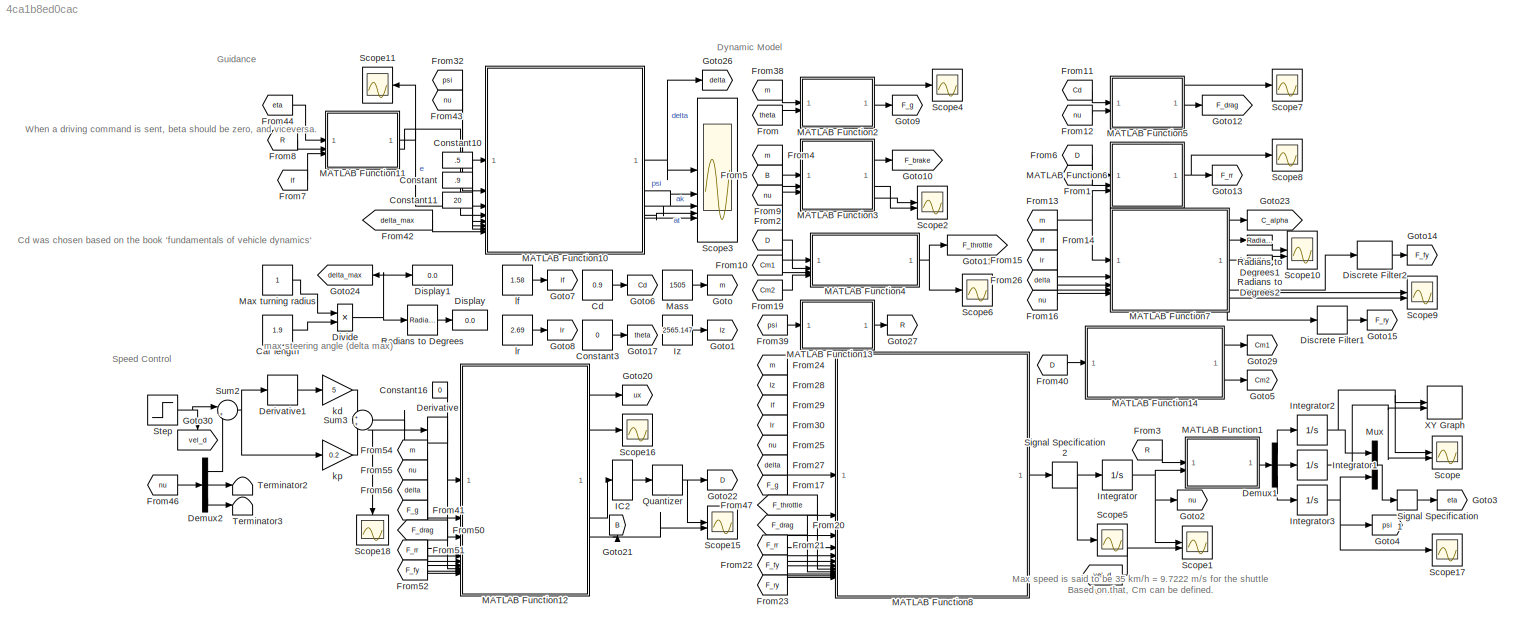
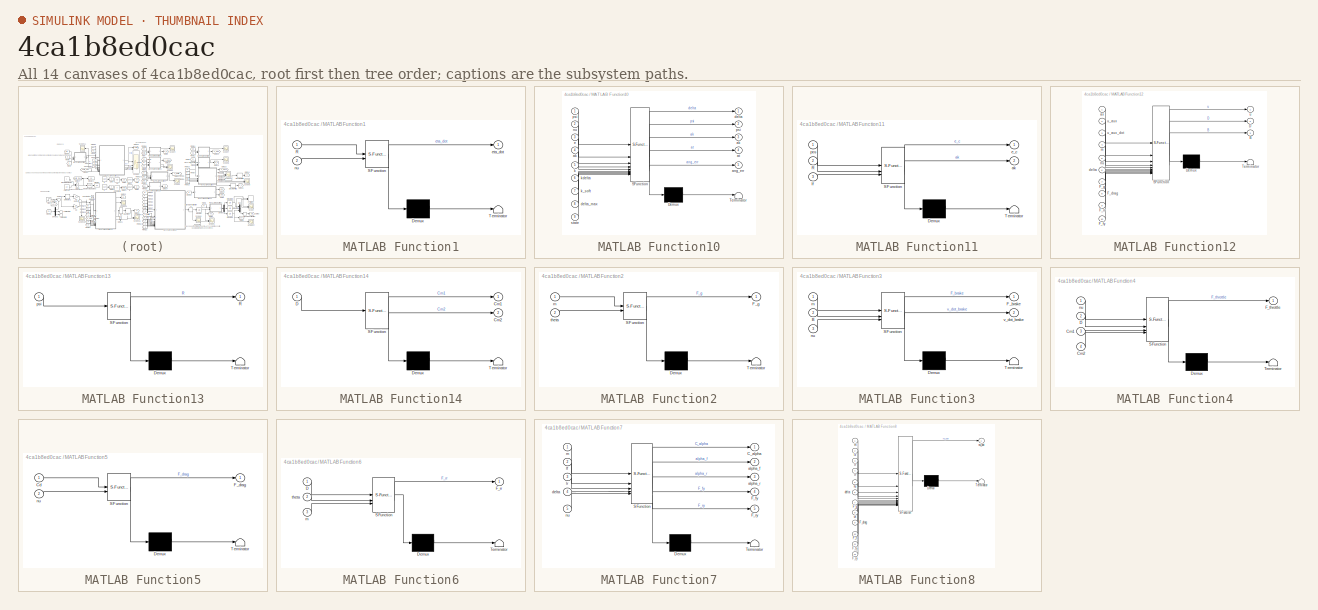
[diagram: thumbnail index - all 14 canvases of the model, root first then tree order]
MODEL slx_4ca1b8ed0cac
KIND model
CONFIG AbsTol = 1e-4
CONFIG EnableMultiTasking = off
CONFIG FixedStep = 0.5
CONFIG MaxStep = auto
CONFIG MinStep = auto
CONFIG RelTol = 1e-4
CONFIG SampleTimeConstraint = Unconstrained
CONFIG SolverName = ode1be
CONFIG StartTime = 0.0
CONFIG StopTime = 1000
BLOCK [Constant] Car length
  Value = 1.9
BLOCK [Constant] Cd
  Value = 0.9
BLOCK [Constant] Constant
  Value = .9
BLOCK [Constant] Constant10
  Value = .5
BLOCK [Constant] Constant11
  Value = 20
BLOCK [Constant] Constant16
  Value = 0
BLOCK [Constant] Constant3
  Value = 0
BLOCK [Demux] Demux1
  Outputs = 3
BLOCK [Demux] Demux2
  Outputs = 3
BLOCK [Derivative] Derivative
BLOCK [Derivative] Derivative1
BLOCK [DiscreteFilter] Discrete Filter1
  Denominator = [10]
  InputPortMap = u0
  Numerator = [0.001]
BLOCK [DiscreteFilter] Discrete Filter2
  Denominator = [10]
  InputPortMap = u0
  Numerator = [0.001]
BLOCK [Display] Display
  Decimation = 1
BLOCK [Display] Display1
  Decimation = 1
BLOCK [Product] Divide
  Inputs = */
BLOCK [From] From
  GotoTag = theta
BLOCK [From] From1
  GotoTag = theta
BLOCK [From] From10
  GotoTag = Cm1
BLOCK [From] From11
  GotoTag = Cd
BLOCK [From] From12
  GotoTag = nu
BLOCK [From] From13
  GotoTag = m
BLOCK [From] From14
  GotoTag = lf
BLOCK [From] From15
  GotoTag = lr
BLOCK [From] From16
  GotoTag = nu
BLOCK [From] From17
  GotoTag = F_g
BLOCK [From] From19
  GotoTag = Cm2
BLOCK [From] From2
  GotoTag = D
BLOCK [From] From20
  GotoTag = F_drag
BLOCK [From] From21
  GotoTag = F_rr
BLOCK [From] From22
  GotoTag = F_fy
BLOCK [From] From23
  GotoTag = F_ry
BLOCK [From] From24
  GotoTag = m
BLOCK [From] From25
  GotoTag = nu
BLOCK [From] From26
  GotoTag = delta
BLOCK [From] From27
  GotoTag = delta
BLOCK [From] From28
  GotoTag = Iz
BLOCK [From] From29
  GotoTag = lf
BLOCK [From] From3
  GotoTag = R
BLOCK [From] From30
  GotoTag = lr
BLOCK [From] From32
  GotoTag = psi
BLOCK [From] From38
  GotoTag = m
BLOCK [From] From39
  GotoTag = psi
BLOCK [From] From4
  GotoTag = m
BLOCK [From] From40
  GotoTag = D
BLOCK [From] From41
  GotoTag = F_g
BLOCK [From] From42
  GotoTag = delta_max
BLOCK [From] From43
  GotoTag = nu
BLOCK [From] From44
  GotoTag = eta
BLOCK [From] From46
  GotoTag = nu
BLOCK [From] From47
  GotoTag = F_throttle
BLOCK [From] From48
  GotoTag = vel_d
BLOCK [From] From5
  GotoTag = B
BLOCK [From] From50
  GotoTag = F_drag
BLOCK [From] From51
  GotoTag = F_rr
BLOCK [From] From52
  GotoTag = F_fy
BLOCK [From] From54
  GotoTag = m
BLOCK [From] From55
  GotoTag = nu
BLOCK [From] From56
  GotoTag = delta
BLOCK [From] From6
  GotoTag = D
BLOCK [From] From7
  GotoTag = lf
BLOCK [From] From8
  GotoTag = R
BLOCK [From] From9
  GotoTag = nu
BLOCK [Goto] Goto
  GotoTag = m
BLOCK [Goto] Goto1
  GotoTag = Iz
BLOCK [Goto] Goto10
  Commented = on
  GotoTag = F_brake
BLOCK [Goto] Goto11
  GotoTag = F_throttle
BLOCK [Goto] Goto12
  GotoTag = F_drag
BLOCK [Goto] Goto13
  GotoTag = F_rr
BLOCK [Goto] Goto14
  GotoTag = F_fy
BLOCK [Goto] Goto15
  GotoTag = F_ry
BLOCK [Goto] Goto17
  GotoTag = theta
BLOCK [Goto] Goto2
  GotoTag = nu
BLOCK [Goto] Goto20
  GotoTag = ux
BLOCK [Goto] Goto21
  GotoTag = B
  NameLocation = right
BLOCK [Goto] Goto22
  GotoTag = D
BLOCK [Goto] Goto23
  Commented = on
  GotoTag = C_alpha
BLOCK [Goto] Goto24
  GotoTag = delta_max
  NameLocation = top
BLOCK [Goto] Goto26
  GotoTag = delta
BLOCK [Goto] Goto27
  GotoTag = R
BLOCK [Goto] Goto29
  GotoTag = Cm1
BLOCK [Goto] Goto3
  GotoTag = eta
BLOCK [Goto] Goto30
  GotoTag = vel_d
  NameLocation = left
BLOCK [Goto] Goto4
  GotoTag = psi
BLOCK [Goto] Goto5
  GotoTag = Cm2
BLOCK [Goto] Goto6
  GotoTag = Cd
BLOCK [Goto] Goto7
  GotoTag = lf
BLOCK [Goto] Goto8
  GotoTag = lr
BLOCK [Goto] Goto9
  GotoTag = F_g
BLOCK [InitialCondition] IC2
  Value = 0
BLOCK [Integrator] Integrator
BLOCK [Integrator] Integrator1
BLOCK [Integrator] Integrator2
BLOCK [Integrator] Integrator3
  WrapState = on
BLOCK [Constant] Iz
  Value = 2565.147
BLOCK [SubSystem] MATLAB Function1
  ErrorFcn = Stateflow.Translate.translate
  PermitHierarchicalResolution = ExplicitOnly
  SFBlockType = MATLAB Function
  TreatAsAtomicUnit = on
BLOCK [Demux] MATLAB Function1/ Demux 
  Outputs = 1
BLOCK [S-Function] MATLAB Function1/ SFunction 
  EnableBusSupport = on
  FunctionName = sf_sfun
  PortCounts = [2 2]
  SFcnIsStateOwnerBlock = off
  SFunctionDeploymentMode = off
  Tag = Stateflow S-Function 1
BLOCK [Terminator] MATLAB Function1/ Terminator 
BLOCK [Inport] MATLAB Function1/R
BLOCK [Outport] MATLAB Function1/eta_dot
BLOCK [Inport] MATLAB Function1/nu
  Port = 2
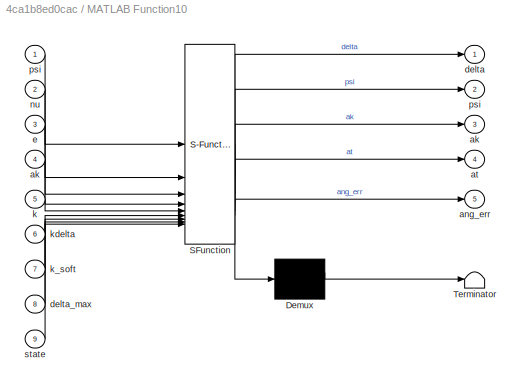
BLOCK [SubSystem] MATLAB Function10
  ErrorFcn = Stateflow.Translate.translate
  LibrarySourceBlock = simulink/User-Defined\nFunctions/MATLAB Function
  PermitHierarchicalResolution = ExplicitOnly
  SFBlockType = MATLAB Function
  TreatAsAtomicUnit = on
BLOCK [Demux] MATLAB Function10/ Demux 
  Outputs = 1
BLOCK [S-Function] MATLAB Function10/ SFunction 
  EnableBusSupport = on
  FunctionName = sf_sfun
  PortCounts = [9 6]
  SFcnIsStateOwnerBlock = off
  SFunctionDeploymentMode = off
  Tag = Stateflow S-Function 11
BLOCK [Terminator] MATLAB Function10/ Terminator 
BLOCK [Outport] MATLAB Function10/ak
  Port = 3
BLOCK [Inport] MATLAB Function10/ak 
  Port = 4
BLOCK [Outport] MATLAB Function10/ang_err
  Port = 5
BLOCK [Outport] MATLAB Function10/at
  Port = 4
BLOCK [Outport] MATLAB Function10/delta
BLOCK [Inport] MATLAB Function10/delta_max
  Port = 8
BLOCK [Inport] MATLAB Function10/e
  Port = 3
BLOCK [Inport] MATLAB Function10/k
  Port = 5
BLOCK [Inport] MATLAB Function10/k_soft
  Port = 7
BLOCK [Inport] MATLAB Function10/kdelta
  Port = 6
BLOCK [Inport] MATLAB Function10/nu
  Port = 2
BLOCK [Outport] MATLAB Function10/psi
  Port = 2
BLOCK [Inport] MATLAB Function10/psi 
BLOCK [Inport] MATLAB Function10/state
  Port = 9
BLOCK [SubSystem] MATLAB Function11
  ErrorFcn = Stateflow.Translate.translate
  LibrarySourceBlock = simulink/User-Defined\nFunctions/MATLAB Function
  PermitHierarchicalResolution = ExplicitOnly
  SFBlockType = MATLAB Function
  TreatAsAtomicUnit = on
BLOCK [Demux] MATLAB Function11/ Demux 
  Outputs = 1
BLOCK [S-Function] MATLAB Function11/ SFunction 
  EnableBusSupport = on
  FunctionName = sf_sfun
  PortCounts = [3 3]
  SFcnIsStateOwnerBlock = off
  SFunctionDeploymentMode = off
  Tag = Stateflow S-Function 12
BLOCK [Terminator] MATLAB Function11/ Terminator 
BLOCK [Inport] MATLAB Function11/R
  Port = 2
BLOCK [Outport] MATLAB Function11/ak
  Port = 2
BLOCK [Outport] MATLAB Function11/e_c
BLOCK [Inport] MATLAB Function11/lf
  Port = 3
BLOCK [Inport] MATLAB Function11/pos
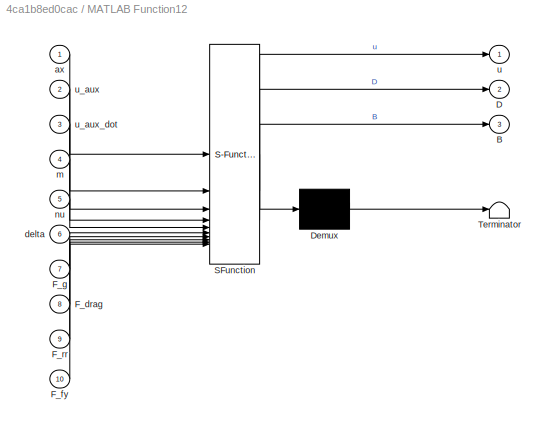
BLOCK [SubSystem] MATLAB Function12
  ErrorFcn = Stateflow.Translate.translate
  LibrarySourceBlock = simulink/User-Defined\nFunctions/MATLAB Function
  PermitHierarchicalResolution = ExplicitOnly
  SFBlockType = MATLAB Function
  TreatAsAtomicUnit = on
BLOCK [Demux] MATLAB Function12/ Demux 
  Outputs = 1
BLOCK [S-Function] MATLAB Function12/ SFunction 
  EnableBusSupport = on
  FunctionName = sf_sfun
  PortCounts = [10 4]
  SFcnIsStateOwnerBlock = off
  SFunctionDeploymentMode = off
  Tag = Stateflow S-Function 13
BLOCK [Terminator] MATLAB Function12/ Terminator 
BLOCK [Outport] MATLAB Function12/B
  Port = 3
BLOCK [Outport] MATLAB Function12/D
  Port = 2
BLOCK [Inport] MATLAB Function12/F_drag
  Port = 8
BLOCK [Inport] MATLAB Function12/F_fy
  Port = 10
BLOCK [Inport] MATLAB Function12/F_g
  Port = 7
BLOCK [Inport] MATLAB Function12/F_rr
  Port = 9
BLOCK [Inport] MATLAB Function12/ax
BLOCK [Inport] MATLAB Function12/delta
  Port = 6
BLOCK [Inport] MATLAB Function12/m
  Port = 4
BLOCK [Inport] MATLAB Function12/nu
  Port = 5
BLOCK [Outport] MATLAB Function12/u
BLOCK [Inport] MATLAB Function12/u_aux
  Port = 2
BLOCK [Inport] MATLAB Function12/u_aux_dot
  Port = 3
BLOCK [SubSystem] MATLAB Function13
  ErrorFcn = Stateflow.Translate.translate
  LibrarySourceBlock = simulink/User-Defined\nFunctions/MATLAB Function
  PermitHierarchicalResolution = ExplicitOnly
  SFBlockType = MATLAB Function
  TreatAsAtomicUnit = on
BLOCK [Demux] MATLAB Function13/ Demux 
  Outputs = 1
BLOCK [S-Function] MATLAB Function13/ SFunction 
  EnableBusSupport = on
  FunctionName = sf_sfun
  PortCounts = [1 2]
  SFcnIsStateOwnerBlock = off
  SFunctionDeploymentMode = off
  Tag = Stateflow S-Function 14
BLOCK [Terminator] MATLAB Function13/ Terminator 
BLOCK [Outport] MATLAB Function13/R
BLOCK [Inport] MATLAB Function13/psi
BLOCK [SubSystem] MATLAB Function14
  ErrorFcn = Stateflow.Translate.translate
  LibrarySourceBlock = simulink/User-Defined\nFunctions/MATLAB Function
  PermitHierarchicalResolution = ExplicitOnly
  SFBlockType = MATLAB Function
  TreatAsAtomicUnit = on
BLOCK [Demux] MATLAB Function14/ Demux 
  Outputs = 1
BLOCK [S-Function] MATLAB Function14/ SFunction 
  EnableBusSupport = on
  FunctionName = sf_sfun
  PortCounts = [1 3]
  SFcnIsStateOwnerBlock = off
  SFunctionDeploymentMode = off
  Tag = Stateflow S-Function 15
BLOCK [Terminator] MATLAB Function14/ Terminator 
BLOCK [Outport] MATLAB Function14/Cm1
BLOCK [Outport] MATLAB Function14/Cm2
  Port = 2
BLOCK [Inport] MATLAB Function14/D
BLOCK [SubSystem] MATLAB Function2
  ErrorFcn = Stateflow.Translate.translate
  LibrarySourceBlock = simulink/User-Defined\nFunctions/MATLAB Function
  PermitHierarchicalResolution = ExplicitOnly
  SFBlockType = MATLAB Function
  TreatAsAtomicUnit = on
BLOCK [Demux] MATLAB Function2/ Demux 
  Outputs = 1
BLOCK [S-Function] MATLAB Function2/ SFunction 
  EnableBusSupport = on
  FunctionName = sf_sfun
  PortCounts = [2 2]
  SFcnIsStateOwnerBlock = off
  SFunctionDeploymentMode = off
  Tag = Stateflow S-Function 3
BLOCK [Terminator] MATLAB Function2/ Terminator 
BLOCK [Outport] MATLAB Function2/F_g
BLOCK [Inport] MATLAB Function2/m
BLOCK [Inport] MATLAB Function2/theta
  Port = 2
BLOCK [SubSystem] MATLAB Function3
  ErrorFcn = Stateflow.Translate.translate
  LibrarySourceBlock = simulink/User-Defined\nFunctions/MATLAB Function
  PermitHierarchicalResolution = ExplicitOnly
  SFBlockType = MATLAB Function
  TreatAsAtomicUnit = on
BLOCK [Demux] MATLAB Function3/ Demux 
  Outputs = 1
BLOCK [S-Function] MATLAB Function3/ SFunction 
  EnableBusSupport = on
  FunctionName = sf_sfun
  PortCounts = [3 3]
  SFcnIsStateOwnerBlock = off
  SFunctionDeploymentMode = off
  Tag = Stateflow S-Function 4
BLOCK [Terminator] MATLAB Function3/ Terminator 
BLOCK [Inport] MATLAB Function3/B
  Port = 2
BLOCK [Outport] MATLAB Function3/F_brake
BLOCK [Inport] MATLAB Function3/m
BLOCK [Inport] MATLAB Function3/nu
  Port = 3
BLOCK [Outport] MATLAB Function3/v_dot_brake
  Port = 2
BLOCK [SubSystem] MATLAB Function4
  ErrorFcn = Stateflow.Translate.translate
  LibrarySourceBlock = simulink/User-Defined\nFunctions/MATLAB Function
  PermitHierarchicalResolution = ExplicitOnly
  SFBlockType = MATLAB Function
  TreatAsAtomicUnit = on
BLOCK [Demux] MATLAB Function4/ Demux 
  Outputs = 1
BLOCK [S-Function] MATLAB Function4/ SFunction 
  EnableBusSupport = on
  FunctionName = sf_sfun
  PortCounts = [4 2]
  SFcnIsStateOwnerBlock = off
  SFunctionDeploymentMode = off
  Tag = Stateflow S-Function 5
BLOCK [Terminator] MATLAB Function4/ Terminator 
BLOCK [Inport] MATLAB Function4/Cm1
  Port = 3
BLOCK [Inport] MATLAB Function4/Cm2
  Port = 4
BLOCK [Inport] MATLAB Function4/D
  Port = 2
BLOCK [Outport] MATLAB Function4/F_throttle
BLOCK [Inport] MATLAB Function4/nu
BLOCK [SubSystem] MATLAB Function5
  ErrorFcn = Stateflow.Translate.translate
  LibrarySourceBlock = simulink/User-Defined\nFunctions/MATLAB Function
  PermitHierarchicalResolution = ExplicitOnly
  SFBlockType = MATLAB Function
  TreatAsAtomicUnit = on
BLOCK [Demux] MATLAB Function5/ Demux 
  Outputs = 1
BLOCK [S-Function] MATLAB Function5/ SFunction 
  EnableBusSupport = on
  FunctionName = sf_sfun
  PortCounts = [2 2]
  SFcnIsStateOwnerBlock = off
  SFunctionDeploymentMode = off
  Tag = Stateflow S-Function 6
BLOCK [Terminator] MATLAB Function5/ Terminator 
BLOCK [Inport] MATLAB Function5/Cd
BLOCK [Outport] MATLAB Function5/F_drag
BLOCK [Inport] MATLAB Function5/nu
  Port = 2
BLOCK [SubSystem] MATLAB Function6
  ErrorFcn = Stateflow.Translate.translate
  LibrarySourceBlock = simulink/User-Defined\nFunctions/MATLAB Function
  PermitHierarchicalResolution = ExplicitOnly
  SFBlockType = MATLAB Function
  TreatAsAtomicUnit = on
BLOCK [Demux] MATLAB Function6/ Demux 
  Outputs = 1
BLOCK [S-Function] MATLAB Function6/ SFunction 
  EnableBusSupport = on
  FunctionName = sf_sfun
  PortCounts = [3 2]
  SFcnIsStateOwnerBlock = off
  SFunctionDeploymentMode = off
  Tag = Stateflow S-Function 7
BLOCK [Terminator] MATLAB Function6/ Terminator 
BLOCK [Inport] MATLAB Function6/D
BLOCK [Outport] MATLAB Function6/F_rr
BLOCK [Inport] MATLAB Function6/m
  Port = 3
BLOCK [Inport] MATLAB Function6/theta
  Port = 2
BLOCK [SubSystem] MATLAB Function7
  ErrorFcn = Stateflow.Translate.translate
  LibrarySourceBlock = simulink/User-Defined\nFunctions/MATLAB Function
  PermitHierarchicalResolution = ExplicitOnly
  SFBlockType = MATLAB Function
  TreatAsAtomicUnit = on
BLOCK [Demux] MATLAB Function7/ Demux 
  Outputs = 1
BLOCK [S-Function] MATLAB Function7/ SFunction 
  EnableBusSupport = on
  FunctionName = sf_sfun
  PortCounts = [5 6]
  SFcnIsStateOwnerBlock = off
  SFunctionDeploymentMode = off
  Tag = Stateflow S-Function 8
BLOCK [Terminator] MATLAB Function7/ Terminator 
BLOCK [Outport] MATLAB Function7/C_alpha
BLOCK [Outport] MATLAB Function7/F_fy
  Port = 4
BLOCK [Outport] MATLAB Function7/F_ry
  Port = 5
BLOCK [Outport] MATLAB Function7/alpha_f
  Port = 2
BLOCK [Outport] MATLAB Function7/alpha_r
  Port = 3
BLOCK [Inport] MATLAB Function7/delta
  Port = 4
BLOCK [Inport] MATLAB Function7/lf
  Port = 2
BLOCK [Inport] MATLAB Function7/lr
  Port = 3
BLOCK [Inport] MATLAB Function7/m
BLOCK [Inport] MATLAB Function7/nu
  Port = 5
BLOCK [SubSystem] MATLAB Function8
  ErrorFcn = Stateflow.Translate.translate
  LibrarySourceBlock = simulink/User-Defined\nFunctions/MATLAB Function
  PermitHierarchicalResolution = ExplicitOnly
  SFBlockType = MATLAB Function
  TreatAsAtomicUnit = on
BLOCK [Demux] MATLAB Function8/ Demux 
  Outputs = 1
BLOCK [S-Function] MATLAB Function8/ SFunction 
  EnableBusSupport = on
  FunctionName = sf_sfun
  PortCounts = [12 2]
  SFcnIsStateOwnerBlock = off
  SFunctionDeploymentMode = off
  Tag = Stateflow S-Function 9
BLOCK [Terminator] MATLAB Function8/ Terminator 
BLOCK [Inport] MATLAB Function8/F_drag
  Port = 9
BLOCK [Inport] MATLAB Function8/F_fy
  Port = 11
BLOCK [Inport] MATLAB Function8/F_g
  Port = 7
BLOCK [Inport] MATLAB Function8/F_rr
  Port = 10
BLOCK [Inport] MATLAB Function8/F_ry
  Port = 12
BLOCK [Inport] MATLAB Function8/Iz
  Port = 2
BLOCK [Inport] MATLAB Function8/delta
  Port = 6
BLOCK [Inport] MATLAB Function8/lf
  Port = 3
BLOCK [Inport] MATLAB Function8/lr
  Port = 4
BLOCK [Inport] MATLAB Function8/m
BLOCK [Inport] MATLAB Function8/nu
  Port = 5
BLOCK [Outport] MATLAB Function8/nu_dot
BLOCK [Inport] MATLAB Function8/ux
  Port = 8
BLOCK [Constant] Mass
  Value = 1505
BLOCK [Constant] Max turning radius
BLOCK [Mux] Mux
  DisplayOption = bar
  Inputs = 3
BLOCK [Quantizer] Quantizer
  QuantizationInterval = 1
BLOCK [Reference] Radians to Degrees  REF=simulink_extras/Transformations/Radians
to Degrees
  SourceBlock = simulink_extras/Transformations/Radians\nto Degrees
  SourceType = RadiansToDegrees
BLOCK [Reference] Radians to Degrees1  REF=simulink_extras/Transformations/Radians
to Degrees
  SourceBlock = simulink_extras/Transformations/Radians\nto Degrees
  SourceType = RadiansToDegrees
BLOCK [Reference] Radians to Degrees2  REF=simulink_extras/Transformations/Radians
to Degrees
  SourceBlock = simulink_extras/Transformations/Radians\nto Degrees
  SourceType = RadiansToDegrees
BLOCK [Scope] Scope
  Floating = off
  NumInputPorts = 2
  ScopeSpecificationString = Simulink.scopes.TimeScopeBlockCfg('CurrentConfiguration', extmgr.ConfigurationSet(extmgr.Configuration('Core','General UI',true),extmgr.Configuration('Core','Source UI',true),extmgr.Configuration('Sources','WiredSimulink',true,'DataLoggingVariableName','ScopeData4'),extmgr.Configuration('Visuals','Time Domain',true,'SerializedDisplays',{struct('MinYLimReal','-54.84844','MaxYLimReal','493.62717','Y...<+1505ch>
BLOCK [Scope] Scope1
  Floating = off
  NumInputPorts = 2
  ScopeSpecificationString = Simulink.scopes.TimeScopeBlockCfg('CurrentConfiguration', extmgr.ConfigurationSet(extmgr.Configuration('Core','General UI',true),extmgr.Configuration('Core','Source UI',true),extmgr.Configuration('Sources','WiredSimulink',true,'DataLoggingVariableName','ScopeData2'),extmgr.Configuration('Visuals','Time Domain',true,'SerializedDisplays',{struct('MinYLimReal','-0.3864','MaxYLimReal','1.15966','YLabe...<+1561ch>
BLOCK [Scope] Scope10
  Floating = off
  NumInputPorts = 2
  ScopeSpecificationString = Simulink.scopes.TimeScopeBlockCfg('CurrentConfiguration', extmgr.ConfigurationSet(extmgr.Configuration('Core','General UI',true),extmgr.Configuration('Core','Source UI',true),extmgr.Configuration('Sources','WiredSimulink',true,'DataLoggingVariableName','ScopeData1'),extmgr.Configuration('Visuals','Time Domain',true,'SerializedDisplays',{struct('MinYLimReal','-216.76529','MaxYLimReal','192.20094','...<+1531ch>
BLOCK [Scope] Scope11
  Floating = off
  NameLocation = top
  NumInputPorts = 1
  ScopeSpecificationString = Simulink.scopes.TimeScopeBlockCfg('CurrentConfiguration', extmgr.ConfigurationSet(extmgr.Configuration('Core','General UI',true),extmgr.Configuration('Core','Source UI',true),extmgr.Configuration('Sources','WiredSimulink',true,'DataLoggingVariableName','ScopeData1'),extmgr.Configuration('Visuals','Time Domain',true,'SerializedDisplays',{struct('MinYLimReal','-0.32656','MaxYLimReal','0.10905','YLab...<+1506ch>
BLOCK [Scope] Scope15
  Floating = off
  NumInputPorts = 2
  ScopeSpecificationString = Simulink.scopes.TimeScopeBlockCfg('CurrentConfiguration', extmgr.ConfigurationSet(extmgr.Configuration('Core','General UI',true),extmgr.Configuration('Core','Source UI',true),extmgr.Configuration('Sources','WiredSimulink',true,'DataLoggingVariableName','ScopeData2'),extmgr.Configuration('Visuals','Time Domain',true,'SerializedDisplays',{struct('MinYLimReal','-18.33333','MaxYLimReal','50.41667','YL...<+1464ch>
BLOCK [Scope] Scope16
  Floating = off
  NumInputPorts = 1
  ScopeSpecificationString = Simulink.scopes.TimeScopeBlockCfg('CurrentConfiguration', extmgr.ConfigurationSet(extmgr.Configuration('Core','General UI',true),extmgr.Configuration('Core','Source UI',true),extmgr.Configuration('Sources','WiredSimulink',true,'DataLoggingVariableName','ScopeData3'),extmgr.Configuration('Visuals','Time Domain',true,'SerializedDisplays',{struct('MinYLimReal','1089.25278','MaxYLimReal','1653.62778',...<+1759ch>
BLOCK [Scope] Scope17
  Floating = off
  NumInputPorts = 1
  ScopeSpecificationString = Simulink.scopes.TimeScopeBlockCfg('CurrentConfiguration', extmgr.ConfigurationSet(extmgr.Configuration('Core','General UI',true),extmgr.Configuration('Core','Source UI',true),extmgr.Configuration('Sources','WiredSimulink',true,'DataLoggingVariableName','ScopeData5'),extmgr.Configuration('Visuals','Time Domain',true,'SerializedDisplays',{struct('MinYLimReal','-1.77224','MaxYLimReal','0.19692','YLab...<+1390ch>
BLOCK [Scope] Scope18
  Floating = off
  NameLocation = left
  NumInputPorts = 1
  ScopeSpecificationString = Simulink.scopes.TimeScopeBlockCfg('CurrentConfiguration', extmgr.ConfigurationSet(extmgr.Configuration('Core','General UI',true),extmgr.Configuration('Core','Source UI',true),extmgr.Configuration('Sources','WiredSimulink',true,'DataLoggingVariableName','ScopeData1'),extmgr.Configuration('Visuals','Time Domain',true,'SerializedDisplays',{struct('MinYLimReal','-0.03808','MaxYLimReal','0.22645','YLab...<+1728ch>
BLOCK [Scope] Scope2
  Floating = off
  NumInputPorts = 2
  ScopeSpecificationString = Simulink.scopes.TimeScopeBlockCfg('CurrentConfiguration', extmgr.ConfigurationSet(extmgr.Configuration('Core','General UI',true),extmgr.Configuration('Core','Source UI',true),extmgr.Configuration('Sources','WiredSimulink',true,'DataLoggingVariableName','ScopeData7'),extmgr.Configuration('Visuals','Time Domain',true,'SerializedDisplays',{struct('MinYLimReal','-1.00000','MaxYLimReal','1.00000','YLab...<+1521ch>
BLOCK [Scope] Scope3
  Floating = off
  NumInputPorts = 5
  ScopeSpecificationString = Simulink.scopes.TimeScopeBlockCfg('CurrentConfiguration', extmgr.ConfigurationSet(extmgr.Configuration('Core','General UI',true),extmgr.Configuration('Core','Source UI',true),extmgr.Configuration('Sources','WiredSimulink',true,'DataLoggingVariableName','ScopeData1'),extmgr.Configuration('Visuals','Time Domain',true,'SerializedDisplays',{struct('MinYLimReal','-1.65502','MaxYLimReal','0.18389','YLab...<+1575ch>
BLOCK [Scope] Scope4
  Floating = off
  NumInputPorts = 1
  ScopeSpecificationString = Simulink.scopes.TimeScopeBlockCfg('CurrentConfiguration', extmgr.ConfigurationSet(extmgr.Configuration('Core','General UI',true),extmgr.Configuration('Core','Source UI',true),extmgr.Configuration('Sources','WiredSimulink',true,'DataLoggingVariableName','ScopeData2'),extmgr.Configuration('Visuals','Time Domain',true,'SerializedDisplays',{struct('MinYLimReal','-1.00000','MaxYLimReal','1.00000','YLab...<+1409ch>
BLOCK [Scope] Scope5
  Floating = off
  NumInputPorts = 1
  ScopeSpecificationString = Simulink.scopes.TimeScopeBlockCfg('CurrentConfiguration', extmgr.ConfigurationSet(extmgr.Configuration('Core','General UI',true),extmgr.Configuration('Core','Source UI',true),extmgr.Configuration('Sources','WiredSimulink',true,'DataLoggingVariableName','ScopeData1'),extmgr.Configuration('Visuals','Time Domain',true,'SerializedDisplays',{struct('MinYLimReal','-6.07548','MaxYLimReal','46.40261','YLa...<+1554ch>
BLOCK [Scope] Scope6
  Floating = off
  NumInputPorts = 1
  ScopeSpecificationString = Simulink.scopes.TimeScopeBlockCfg('CurrentConfiguration', extmgr.ConfigurationSet(extmgr.Configuration('Core','General UI',true),extmgr.Configuration('Core','Source UI',true),extmgr.Configuration('Sources','WiredSimulink',true,'DataLoggingVariableName','ScopeData3'),extmgr.Configuration('Visuals','Time Domain',true,'SerializedDisplays',{struct('MinYLimReal','-990.12564','MaxYLimReal','2353.7711','...<+1437ch>
BLOCK [Scope] Scope7
  Floating = off
  NumInputPorts = 1
  ScopeSpecificationString = Simulink.scopes.TimeScopeBlockCfg('CurrentConfiguration', extmgr.ConfigurationSet(extmgr.Configuration('Core','General UI',true),extmgr.Configuration('Core','Source UI',true),extmgr.Configuration('Sources','WiredSimulink',true,'DataLoggingVariableName','ScopeData4'),extmgr.Configuration('Visuals','Time Domain',true,'SerializedDisplays',{struct('MinYLimReal','-1.00000','MaxYLimReal','1.00000','YLab...<+1415ch>
BLOCK [Scope] Scope8
  Floating = off
  NumInputPorts = 1
  ScopeSpecificationString = Simulink.scopes.TimeScopeBlockCfg('CurrentConfiguration', extmgr.ConfigurationSet(extmgr.Configuration('Core','General UI',true),extmgr.Configuration('Core','Source UI',true),extmgr.Configuration('Sources','WiredSimulink',true,'DataLoggingVariableName','ScopeData5'),extmgr.Configuration('Visuals','Time Domain',true,'SerializedDisplays',{struct('MinYLimReal','145.69028','MaxYLimReal','2145.69028','...<+1462ch>
BLOCK [Scope] Scope9
  Floating = off
  NumInputPorts = 2
  ScopeSpecificationString = Simulink.scopes.TimeScopeBlockCfg('CurrentConfiguration', extmgr.ConfigurationSet(extmgr.Configuration('Core','General UI',true),extmgr.Configuration('Core','Source UI',true),extmgr.Configuration('Sources','WiredSimulink',true,'DataLoggingVariableName','ScopeData6'),extmgr.Configuration('Visuals','Time Domain',true,'SerializedDisplays',{struct('MinYLimReal','-1.00000','MaxYLimReal','1.00000','YLab...<+1505ch>
BLOCK [SignalSpecification] Signal Specification1
BLOCK [SignalSpecification] Signal Specification2
  Dimensions = 3
BLOCK [Step] Step
  After = .5
  Before = .5
  SampleTime = 0
  Time = 0
BLOCK [Sum] Sum2
  Inputs = |+-
BLOCK [Sum] Sum3
BLOCK [Terminator] Terminator2
BLOCK [Terminator] Terminator3
BLOCK [Record] XY Graph
  CompatibilityTag = XY
  FileSettingsInternal = {"entries":[{"content":{"excelSettings":{"content":{},"type":"Streamout.ExcelSettings"}},"type":"Streamout.FileSettingStorage","uuid":""}],"packageUris":["http:\/\/schema.mathworks.com\/mf0\/streamout_blocks\/R2020a"],"version":"1.0"}
  Layout = [1 1]
  SignalsInternal = {"entries":[{"content":{"signals":[{"content":{"blockPath":[],"dimensions":[1],"domain":"","lineColor":"#edb120","plots":[1],"port":1,"signalID":16,"signalName":"Integrator2"},"type":"RecordBlkView.Signal","uuid":""},{"content":{"blockPath":[],"dimensions":[1],"domain":"","lineColor":"#7e2f8e","plots":[1],"port":2,"signalID":19,"signalName":"Integrator1"},"type":"RecordBlkView.Signal","uuid":""}]}...<+144ch>
  VisualizationBindings = {"xyplotplugin":{"info":[{"series":[{"bindingParametersList":[{"parameter":"X-Axis","signalID":16,"signalName":"Integrator2"},{"parameter":"Y-Axis","signalID":19,"signalName":"Integrator1"}],"seriesID":32640}],"subplotID":1}]}}
BLOCK [Gain] kd
  Gain = 5
BLOCK [Gain] kp
  Gain = 0.2
BLOCK [Constant] lf
  Value = 1.58
BLOCK [Constant] lr
  Value = 2.69
ANNOTATION (root): Cd was chosen based on the book 'fundamentals of vehicle dynamics'
ANNOTATION (root): Dynamic Model
ANNOTATION (root): Guidance
ANNOTATION (root): Max speed is said to be 35 km/h = 9.7222 m/s for the shuttle Based on that, Cm can be defined.
ANNOTATION (root): Speed Control
ANNOTATION (root): When a driving command is sent, beta should be zero, and viceversa.
ANNOTATION (root): max steering angle (delta max)
LINE Car length:1 -> Divide:2
LINE Cd:1 -> Goto6:1
LINE Constant10:1 -> MATLAB Function10:5
LINE Constant11:1 -> MATLAB Function10:7
LINE Constant16:1 -> MATLAB Function12:1
LINE Constant3:1 -> Goto17:1
LINE Constant:1 -> MATLAB Function10:6
LINE Demux1:1 -> Integrator2:1
LINE Demux1:2 -> Integrator1:1
LINE Demux1:3 -> Integrator3:1
LINE Demux2:1 -> Sum2:2
LINE Demux2:2 -> Terminator2:1
LINE Demux2:3 -> Terminator3:1
LINE Derivative1:1 -> kd:1
LINE Derivative:1 -> MATLAB Function12:3
LINE Discrete Filter1:1 -> Goto15:1
LINE Discrete Filter2:1 -> Goto14:1
NET Divide:1 -> Display1:1, Goto24:1, Radians to Degrees:1
LINE From10:1 -> MATLAB Function4:3
LINE From11:1 -> MATLAB Function5:1
LINE From12:1 -> MATLAB Function5:2
NET From13:1 -> MATLAB Function6:3, MATLAB Function7:1
LINE From14:1 -> MATLAB Function7:2
LINE From15:1 -> MATLAB Function7:3
LINE From16:1 -> MATLAB Function7:5
LINE From17:1 -> MATLAB Function8:7
LINE From19:1 -> MATLAB Function4:4
LINE From1:1 -> MATLAB Function6:2
LINE From20:1 -> MATLAB Function8:9
LINE From21:1 -> MATLAB Function8:10
LINE From22:1 -> MATLAB Function8:11
LINE From23:1 -> MATLAB Function8:12
LINE From24:1 -> MATLAB Function8:1
LINE From25:1 -> MATLAB Function8:5
LINE From26:1 -> MATLAB Function7:4
LINE From27:1 -> MATLAB Function8:6
LINE From28:1 -> MATLAB Function8:2
LINE From29:1 -> MATLAB Function8:3
LINE From2:1 -> MATLAB Function4:2
LINE From30:1 -> MATLAB Function8:4
LINE From32:1 -> MATLAB Function10:1
LINE From38:1 -> MATLAB Function2:1
LINE From39:1 -> MATLAB Function13:1
LINE From3:1 -> MATLAB Function1:1
LINE From40:1 -> MATLAB Function14:1
LINE From41:1 -> MATLAB Function12:7
LINE From42:1 -> MATLAB Function10:8
LINE From43:1 -> MATLAB Function10:2
LINE From44:1 -> MATLAB Function11:1
LINE From46:1 -> Demux2:1
LINE From47:1 -> MATLAB Function8:8
LINE From48:1 -> Scope1:2
LINE From4:1 -> MATLAB Function3:1
LINE From50:1 -> MATLAB Function12:8
LINE From51:1 -> MATLAB Function12:9
LINE From52:1 -> MATLAB Function12:10
LINE From54:1 -> MATLAB Function12:4
LINE From55:1 -> MATLAB Function12:5
LINE From56:1 -> MATLAB Function12:6
LINE From5:1 -> MATLAB Function3:2
LINE From6:1 -> MATLAB Function6:1
LINE From7:1 -> MATLAB Function11:3
LINE From8:1 -> MATLAB Function11:2
NET From9:1 -> MATLAB Function3:3, MATLAB Function4:1
LINE From:1 -> MATLAB Function2:2
LINE IC2:1 -> Quantizer:1
NET Integrator1:1 -> Mux:2, Scope:2, XY Graph:2
NET Integrator2:1 -> Mux:1, Scope:1, XY Graph:1
NET Integrator3:1 -> Goto4:1, Mux:3, Scope17:1
NET Integrator:1 -> Goto2:1, MATLAB Function1:2, Scope1:1
LINE Iz:1 -> Goto1:1
NET MATLAB Function10:1 -> Goto26:1, Scope3:1
LINE MATLAB Function10:2 -> Scope3:2
LINE MATLAB Function10:3 -> Scope3:3
LINE MATLAB Function10:4 -> Scope3:4
LINE MATLAB Function10:5 -> Scope3:5
NET MATLAB Function11:1 -> MATLAB Function10:3, Scope11:1
LINE MATLAB Function11:2 -> MATLAB Function10:4
NET MATLAB Function12:1 -> Goto20:1, Scope16:1
LINE MATLAB Function12:2 -> IC2:1
NET MATLAB Function12:3 -> Goto21:1, Scope15:2
LINE MATLAB Function13:1 -> Goto27:1
LINE MATLAB Function14:1 -> Goto29:1
LINE MATLAB Function14:2 -> Goto5:1
LINE MATLAB Function1:1 -> Demux1:1
NET MATLAB Function2:1 -> Goto9:1, Scope4:1
NET MATLAB Function3:1 -> Goto10:1, Scope2:1
LINE MATLAB Function3:2 -> Scope2:2
NET MATLAB Function4:1 -> Goto11:1, Scope6:1
NET MATLAB Function5:1 -> Goto12:1, Scope7:1
NET MATLAB Function6:1 -> Goto13:1, Scope8:1
LINE MATLAB Function7:1 -> Goto23:1
LINE MATLAB Function7:2 -> Radians to Degrees1:1
LINE MATLAB Function7:3 -> Radians to Degrees2:1
NET MATLAB Function7:4 -> Discrete Filter2:1, Scope9:1
NET MATLAB Function7:5 -> Discrete Filter1:1, Scope9:2
LINE MATLAB Function8:1 -> Signal Specification2:1
LINE Mass:1 -> Goto:1
LINE Max turning radius:1 -> Divide:1
LINE Mux:1 -> Signal Specification1:1
NET Quantizer:1 -> Goto22:1, Scope15:1
LINE Radians to Degrees1:1 -> Scope10:1
LINE Radians to Degrees2:1 -> Scope10:2
LINE Radians to Degrees:1 -> Display:1
LINE Signal Specification1:1 -> Goto3:1
NET Signal Specification2:1 -> Integrator:1, Scope5:1
NET Step:1 -> Goto30:1, Sum2:1
NET Sum2:1 -> Derivative1:1, kp:1
NET Sum3:1 -> Derivative:1, MATLAB Function12:2, Scope18:1
LINE kd:1 -> Sum3:1
LINE kp:1 -> Sum3:2
LINE lf:1 -> Goto7:1
LINE lr:1 -> Goto8:1
note: NET lines group one-source signal fan-out (src -> all destinations, sorted); 1:1 wires keep LINE
CHART MATLAB Function8 states=1 transitions=1
  STATE_LABEL 'eML_blk_kernel()'
  STATE_LABEL 'SCRIPT:\nfunction nu_dot = model_functions(m,Iz,lf,lr,nu,delta,F_g,ux, F_drag,F_rr,F_fy,F_ry)\n    vx = nu(1);\n    vy = nu(2);\n    r = nu(3);\n    \n    fx =  -(F_drag + F_rr + F_g + F_fy*sin(delta) - m*vy*r)/m;\n    fy = (F_ry + F_fy*cos(delta) - m*vx*r)/m;\n    fz = (F_fy*lf*cos(delta) - F_ry*lr)/Iz;\n\n    %ux = F_brake + F_throttle;\n    uy = 0;\n    uz = 0;\n\n    gx = 1/m;\n    gy = 0;\n    gz = 0;\n\n    f...<+95ch>'
CHART MATLAB Function10 states=1 transitions=1
  STATE_LABEL 'eML_blk_kernel()'
  STATE_LABEL 'SCRIPT:\nfunction [delta, psi, ak, at, ang_err]= Stanley_Controller_pro(psi, nu,e,ak, k,kdelta, k_soft,delta_max, state)\n    v = norm(nu(1:2));\n    %v = nu(1);\n\n    ang_err = ak-psi;\n    at = atan2(k*e,k_soft + v);\n    delta = kdelta*(ang_err+at);\n\n    if(delta > delta_max)\n        delta = delta_max;\n    elseif(delta < -delta_max)\n        delta = -delta_max;\n    end\nend\n\n'
CHART MATLAB Function11 states=1 transitions=1
  STATE_LABEL 'eML_blk_kernel()'
  STATE_LABEL 'SCRIPT:\nfunction [e_c,ak] = path(pos, R, lf)\n    path = [0  0;\n            10 1];\n\n    x0 = path(1,1);\n    x1 = path(2,1);\n\n    y0 = path(1,2);\n    y1 = path(2,2);\n\n    e_x = x1 - x0;\n    e_y = y1 - y0;\n\n    ak = -atan2(e_x,e_y);\n\n    pf = R*[lf; 0] + [pos(1); pos(2)];\n\n    x = pf(1);\n    y = pf(2);\n\n    x_p = 0;\n    y_p = 0;\n    \n    if (e_x ~= 0 && e_y ~= 0)\n        % Slope of path\n        m1 = ...<+622ch>'
CHART MATLAB Function12 states=1 transitions=1
  STATE_LABEL 'eML_blk_kernel()'
  STATE_LABEL 'SCRIPT:\nfunction [u,D,B]= model_functions(ax,u_aux,u_aux_dot,m,nu,delta,F_g,F_drag,F_rr,F_fy)\n    vx = nu(1);\n    vy = nu(2);\n    r = nu(3);\n\n    B = 0;\n    fx =  -(F_drag + F_rr + F_g + F_fy*sin(delta) - m*vy*r)/m;\n    %gx = 1/m;\n    u = m*(-fx + ax + u_aux);\n\n    % Next condition was set so the vehicle does not move backwards when\n    % the throttle force is less than the resistance\n    if(F_rr ...<+512ch>'
CHART MATLAB Function13 states=1 transitions=1
  STATE_LABEL 'eML_blk_kernel()'
  STATE_LABEL 'SCRIPT:\nfunction R = Rotation(psi)\n    R = [cos(psi) sin(psi);\n        -sin(psi) cos(psi)];\nend'
CHART MATLAB Function14 states=1 transitions=1
  STATE_LABEL 'eML_blk_kernel()'
  STATE_LABEL 'SCRIPT:\nfunction [Cm1,Cm2]= Motor_Constants(D)\n\n    Cm1 = 0.0113*D^2-2.1552*D+142.22;\n    Cm2 = 0.0028*D^2-0.4629*D+22.399;\n\n    %Cm1 = 120.78*exp(-0.013*D);\n    %Cm2 = 16.762*exp(-0.019*D);\n\n    %Cm1 = -0.7333*D + 102.59;\n    %Cm2 = -0.1125*D + 12.631;\n\n    %Cm1 = -43.63*log(D)+234.3;\n    %Cm2 = -6.903*log(D)+33.706;\n'
CHART MATLAB Function1 states=1 transitions=1
  STATE_LABEL 'eML_blk_kernel()'
  STATE_LABEL 'SCRIPT:\nfunction eta_dot = kinematics(R, nu)\n    eta_dot = [0;0;nu(3)];\n    eta_dot(1:2) = R*nu(1:2);\nend'
CHART MATLAB Function2 states=1 transitions=1
  STATE_LABEL 'eML_blk_kernel()'
  STATE_LABEL 'SCRIPT:\nfunction F_g = Gravity(m,theta)\n    % theta : vehicle pitch angle\n    g = 9.81;\n    \n    F_g = m*g*sin(theta);\nend'
CHART MATLAB Function3 states=1 transitions=1
  STATE_LABEL 'eML_blk_kernel()'
  STATE_LABEL "SCRIPT:\nfunction [F_brake,v_dot_brake]= Brake(m,B,nu)\n    % B : pedal brake command (or position) [0, 1]\n    \n    vx = nu(1);\n    % If this condition is not set, the simulation breaks as velocities\n    % tend to infinity\n    if(vx > 0)\n        % I don't think the original model consider reverse motion nor\n        % standstill situations.\n        % Moreover, this model could lend excesive forces. A...<+353ch>"
CHART MATLAB Function4 states=1 transitions=1
  STATE_LABEL 'eML_blk_kernel()'
  STATE_LABEL 'SCRIPT:\nfunction F_throttle = Throttle(nu,D,Cm1,Cm2)\n    % Cm1 : motor model constant 1\n    % Cm2 : motor model constant 2\n    % D : throttle command (or position) [0, 255]\n\n    vx = nu(1);\n\n    offset = -0.0769*D^2 + 8.1533*D + 1038.7;\n    %step 90 -> 1150\n    %step 67 -> 1240\n    %step 45 -> 1250\n\n    if D>0\n       F_throttle = (Cm1 - Cm2*vx)*D - offset;\n    else\n        F_throttle = 0;\n    end\n...<+61ch>'
CHART MATLAB Function5 states=1 transitions=1
  STATE_LABEL 'eML_blk_kernel()'
  STATE_LABEL 'SCRIPT:\nfunction F_drag = Drag(Cd,nu)\n    % Cm : motor model constant\n    % D : throttle command (or position) [0, 1]\n    % ro : air density\n    % A : transversal area\n    % Cd : drag coefficient\n\n    vx = nu(1);\n    ro = 1.225;\n    A = 3.426;\n    \n    F_drag = 0.5*ro*A*Cd*vx^2;\nend'
CHART MATLAB Function6 states=1 transitions=1
  STATE_LABEL 'eML_blk_kernel()'
  STATE_LABEL 'SCRIPT:\nfunction F_rr = Rolling_Resistance(D,theta,m)\n    % fr : rolling resistance coefficient\n    \n    fr = 0.0776;\n    %fr = 0.015; % For passenger cars, from fundamentals of vehicle dynamics book\n\n    % This resistance force does does not consider standstill\n    % situations. If the vehicle is at rest, the car moves backwards\n    \n    F_rr = m*9.81*fr*cos(theta); % From fundamentals of vehicle...<+234ch>'
CHART MATLAB Function7 states=1 transitions=1
  STATE_LABEL 'eML_blk_kernel()'
  STATE_LABEL 'SCRIPT:\nfunction [C_alpha,alpha_f,alpha_r,F_fy,F_ry]= Lateral_Forces(m,lf,lr,delta,nu)\n    % delta : steering angle\n    % theta_vf : front tire velocity angle\n    % theta_vr : rear tire velocity angle\n    % C_alpha : tire cornering stiffness (assuming being equal for all tires)\n\n    vx = nu(1);\n    vy = nu(2);\n    r = nu(3);\n\n    % C alpha calculated from this webpage: https://www.mchenrysoftware....<+674ch>'
CHART  states=0 transitions=0
CHART  states=0 transitions=0
CHART  states=0 transitions=0
CHART  states=0 transitions=0
CHART  states=0 transitions=0
CHART  states=0 transitions=0
CHART  states=0 transitions=0
CHART  states=0 transitions=0
CHART  states=0 transitions=0
CHART  states=0 transitions=0
CHART  states=0 transitions=0
CHART  states=0 transitions=0
CHART  states=0 transitions=0
